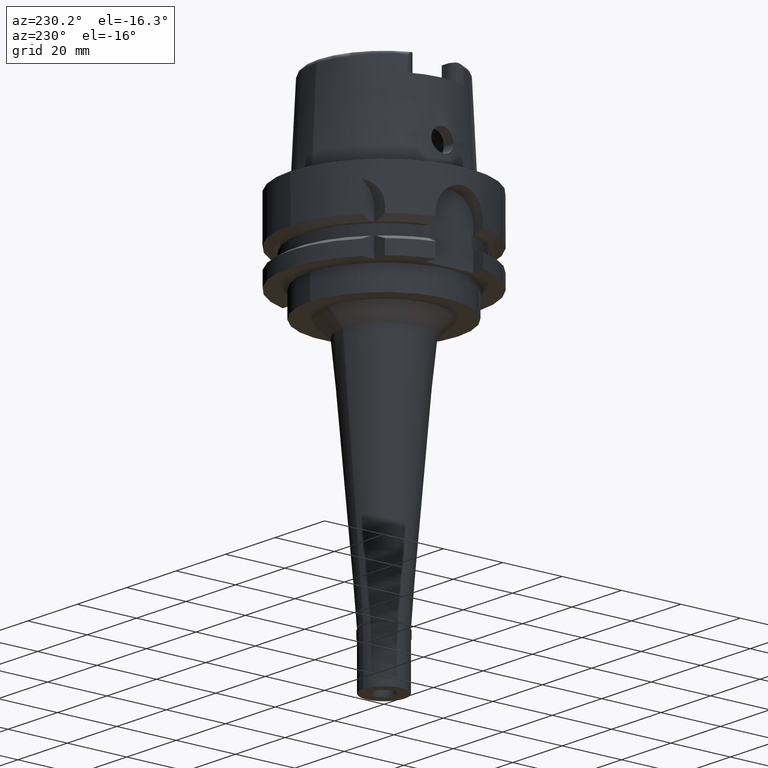
[diagram: clean part render]
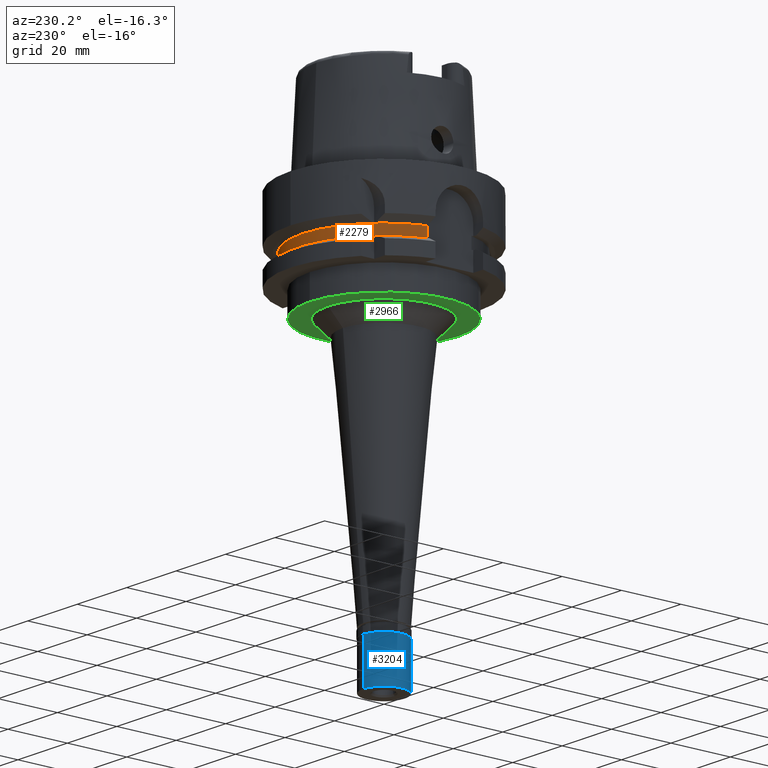
[diagram: same view with three faces highlighted in distinct colors, each labeled with its STEP entity id]
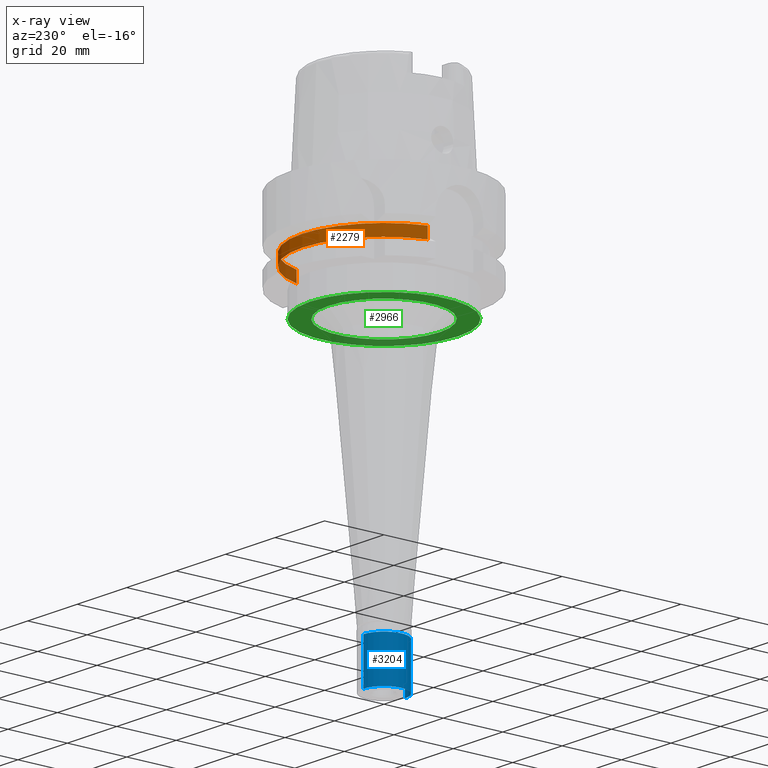
[diagram: x-ray of the same camera — body ghosted, the three highlighted faces saturated]
A machine part, auxiliary view with three faces highlighted in distinct colors.
The next image is the same camera in x-ray (body ghosted, the three faces saturated) — at least one of them is partly hidden behind the body in this view.
Their STEP definitions:

[orange] entity #2279 — the highlighted cylindrical surface (partial cylindrical patch) has radius 27.5 mm, axis along (0, 0, -1).
#16 = DIRECTION ( 'NONE',  ( 0.0000000000000000000, 0.0000000000000000000, 1.000000000000000000 ) ) ;
#53 = DIRECTION ( 'NONE',  ( 0.0000000000000000000, -1.000000000000000000, 0.0000000000000000000 ) ) ;
#132 = CARTESIAN_POINT ( 'NONE',  ( 0.0000000000000000000, 0.0000000000000000000, -19.87500000000000000 ) ) ;
#331 = CARTESIAN_POINT ( 'NONE',  ( 26.50000000000000000, 7.348469228349999938, -16.12500000000000000 ) ) ;
#657 = EDGE_CURVE ( 'NONE', #4257, #930, #5206, .T. ) ;
#807 = CARTESIAN_POINT ( 'NONE',  ( 0.0000000000000000000, 0.0000000000000000000, -16.12500000000000000 ) ) ;
#901 = CIRCLE ( 'NONE', #2631, 27.50000000000000000 ) ;
#916 = ORIENTED_EDGE ( 'NONE', *, *, #1381, .F. ) ;
#930 = VERTEX_POINT ( 'NONE', #2783 ) ;
#1128 = ORIENTED_EDGE ( 'NONE', *, *, #4797, .F. ) ;
#1187 = ORIENTED_EDGE ( 'NONE', *, *, #4871, .T. ) ;
#1336 = VECTOR ( 'NONE', #5311, 1000.000000000000000 ) ;
#1352 = LINE ( 'NONE', #3005, #4454 ) ;
#1381 = EDGE_CURVE ( 'NONE', #3717, #930, #1352, .T. ) ;
#1632 = DIRECTION ( 'NONE',  ( 0.0000000000000000000, 1.000000000000000000, 0.0000000000000000000 ) ) ;
#1723 = VERTEX_POINT ( 'NONE', #331 ) ;
#1802 = DIRECTION ( 'NONE',  ( 0.9636363636363595164, 0.2672170628490889155, 0.0000000000000000000 ) ) ;
#2132 = FACE_OUTER_BOUND ( 'NONE', #4429, .T. ) ;
#2279 = ADVANCED_FACE ( 'NONE', ( #2132 ), #2490, .T. ) ;
#2441 = CARTESIAN_POINT ( 'NONE',  ( 26.50000000000000000, 7.348469228349999938, -19.87500000000000000 ) ) ;
#2490 = CYLINDRICAL_SURFACE ( 'NONE', #2993, 27.50000000000000000 ) ;
#2538 = DIRECTION ( 'NONE',  ( 0.0000000000000000000, 0.0000000000000000000, -1.000000000000000000 ) ) ;
#2631 = AXIS2_PLACEMENT_3D ( 'NONE', #807, #4888, #1632 ) ;
#2783 = CARTESIAN_POINT ( 'NONE',  ( -26.50000000000000000, 7.348469228349999938, -19.87500000000000000 ) ) ;
#2993 = AXIS2_PLACEMENT_3D ( 'NONE', #4135, #2538, #53 ) ;
#3005 = CARTESIAN_POINT ( 'NONE',  ( -26.50000000000000000, 7.348469228349999938, -16.12500000000000000 ) ) ;
#3717 = VERTEX_POINT ( 'NONE', #4309 ) ;
#4135 = CARTESIAN_POINT ( 'NONE',  ( 0.0000000000000000000, 0.0000000000000000000, 40.14999999999999858 ) ) ;
#4136 = AXIS2_PLACEMENT_3D ( 'NONE', #132, #16, #1802 ) ;
#4257 = VERTEX_POINT ( 'NONE', #4712 ) ;
#4309 = CARTESIAN_POINT ( 'NONE',  ( -26.50000000000000000, 7.348469228349999938, -16.12500000000000000 ) ) ;
#4429 = EDGE_LOOP ( 'NONE', ( #916, #1187, #1128, #5146 ) ) ;
#4454 = VECTOR ( 'NONE', #4654, 1000.000000000000000 ) ;
#4654 = DIRECTION ( 'NONE',  ( 0.0000000000000000000, 0.0000000000000000000, -1.000000000000000000 ) ) ;
#4712 = CARTESIAN_POINT ( 'NONE',  ( 26.50000000000000000, 7.348469228349999938, -19.87500000000000000 ) ) ;
#4797 = EDGE_CURVE ( 'NONE', #4257, #1723, #5204, .T. ) ;
#4871 = EDGE_CURVE ( 'NONE', #3717, #1723, #901, .T. ) ;
#4888 = DIRECTION ( 'NONE',  ( 0.0000000000000000000, 0.0000000000000000000, -1.000000000000000000 ) ) ;
#5146 = ORIENTED_EDGE ( 'NONE', *, *, #657, .T. ) ;
#5204 = LINE ( 'NONE', #2441, #1336 ) ;
#5206 = CIRCLE ( 'NONE', #4136, 27.50000000000001066 ) ;
#5311 = DIRECTION ( 'NONE',  ( 0.0000000000000000000, 0.0000000000000000000, 1.000000000000000000 ) ) ;

[blue] entity #3204 — the highlighted cylindrical surface (edge-blend (fillet) strip) has radius 7 mm, axis along (0, 0, 1).
#377 = VECTOR ( 'NONE', #2163, 1000.000000000000000 ) ;
#475 = CIRCLE ( 'NONE', #2391, 7.000000000000000000 ) ;
#710 = CYLINDRICAL_SURFACE ( 'NONE', #1618, 7.000000000000000000 ) ;
#806 = CARTESIAN_POINT ( 'NONE',  ( 0.0000000000000000000, -7.000000000000000000, -2.299999999999999822 ) ) ;
#904 = CIRCLE ( 'NONE', #1602, 7.000000000000000000 ) ;
#1075 = VERTEX_POINT ( 'NONE', #4077 ) ;
#1125 = ORIENTED_EDGE ( 'NONE', *, *, #2647, .T. ) ;
#1229 = EDGE_CURVE ( 'NONE', #5237, #4478, #2488, .T. ) ;
#1303 = ORIENTED_EDGE ( 'NONE', *, *, #1229, .T. ) ;
#1547 = VECTOR ( 'NONE', #3763, 1000.000000000000000 ) ;
#1602 = AXIS2_PLACEMENT_3D ( 'NONE', #2805, #3156, #5271 ) ;
#1618 = AXIS2_PLACEMENT_3D ( 'NONE', #4453, #5373, #2372 ) ;
#1787 = DIRECTION ( 'NONE',  ( 0.0000000000000000000, 0.0000000000000000000, -1.000000000000000000 ) ) ;
#1839 = DIRECTION ( 'NONE',  ( 0.0000000000000000000, -1.000000000000000000, 0.0000000000000000000 ) ) ;
#1893 = CARTESIAN_POINT ( 'NONE',  ( 0.0000000000000000000, 0.0000000000000000000, -2.299999999999999822 ) ) ;
#2163 = DIRECTION ( 'NONE',  ( 0.0000000000000000000, 0.0000000000000000000, -1.000000000000000000 ) ) ;
#2372 = DIRECTION ( 'NONE',  ( 0.0000000000000000000, 1.000000000000000000, 0.0000000000000000000 ) ) ;
#2391 = AXIS2_PLACEMENT_3D ( 'NONE', #1893, #1787, #1839 ) ;
#2488 = LINE ( 'NONE', #2568, #377 ) ;
#2568 = CARTESIAN_POINT ( 'NONE',  ( 0.0000000000000000000, 7.000000000000000000, -2.299999999999999822 ) ) ;
#2647 = EDGE_CURVE ( 'NONE', #1075, #5237, #475, .T. ) ;
#2805 = CARTESIAN_POINT ( 'NONE',  ( 0.0000000000000000000, 0.0000000000000000000, -17.00000000000000000 ) ) ;
#3156 = DIRECTION ( 'NONE',  ( 0.0000000000000000000, 0.0000000000000000000, 1.000000000000000000 ) ) ;
#3204 = ADVANCED_FACE ( 'NONE', ( #3233 ), #710, .T. ) ;
#3233 = FACE_OUTER_BOUND ( 'NONE', #3349, .T. ) ;
#3237 = VERTEX_POINT ( 'NONE', #4849 ) ;
#3349 = EDGE_LOOP ( 'NONE', ( #4792, #5177, #1125, #1303 ) ) ;
#3763 = DIRECTION ( 'NONE',  ( 0.0000000000000000000, 0.0000000000000000000, -1.000000000000000000 ) ) ;
#4077 = CARTESIAN_POINT ( 'NONE',  ( 0.0000000000000000000, -7.000000000000000000, -2.299999999999999822 ) ) ;
#4085 = EDGE_CURVE ( 'NONE', #1075, #3237, #4628, .T. ) ;
#4431 = CARTESIAN_POINT ( 'NONE',  ( 0.0000000000000000000, 7.000000000000000000, -2.299999999999999822 ) ) ;
#4453 = CARTESIAN_POINT ( 'NONE',  ( 0.0000000000000000000, 0.0000000000000000000, -17.85000000000000142 ) ) ;
#4478 = VERTEX_POINT ( 'NONE', #4677 ) ;
#4628 = LINE ( 'NONE', #806, #1547 ) ;
#4677 = CARTESIAN_POINT ( 'NONE',  ( 0.0000000000000000000, 7.000000000000000000, -17.00000000000000000 ) ) ;
#4792 = ORIENTED_EDGE ( 'NONE', *, *, #5223, .T. ) ;
#4849 = CARTESIAN_POINT ( 'NONE',  ( 0.0000000000000000000, -7.000000000000000000, -17.00000000000000000 ) ) ;
#5177 = ORIENTED_EDGE ( 'NONE', *, *, #4085, .F. ) ;
#5223 = EDGE_CURVE ( 'NONE', #4478, #3237, #904, .T. ) ;
#5237 = VERTEX_POINT ( 'NONE', #4431 ) ;
#5271 = DIRECTION ( 'NONE',  ( 0.0000000000000000000, 1.000000000000000000, 0.0000000000000000000 ) ) ;
#5373 = DIRECTION ( 'NONE',  ( 0.0000000000000000000, 0.0000000000000000000, 1.000000000000000000 ) ) ;

[green] entity #2966 — the highlighted planar face has unit normal (0, 0, -1).
#30 = AXIS2_PLACEMENT_3D ( 'NONE', #1236, #1130, #4506 ) ;
#200 = AXIS2_PLACEMENT_3D ( 'NONE', #738, #3573, #5298 ) ;
#237 = CARTESIAN_POINT ( 'NONE',  ( 0.0000000000000000000, 25.00000000000000000, -34.00000000000000000 ) ) ;
#738 = CARTESIAN_POINT ( 'NONE',  ( 0.0000000000000000000, 0.0000000000000000000, -34.00000000000000000 ) ) ;
#1088 = CIRCLE ( 'NONE', #2904, 18.85036235408000138 ) ;
#1130 = DIRECTION ( 'NONE',  ( 0.0000000000000000000, 0.0000000000000000000, 1.000000000000000000 ) ) ;
#1186 = CIRCLE ( 'NONE', #30, 25.00000000000000000 ) ;
#1236 = CARTESIAN_POINT ( 'NONE',  ( 0.0000000000000000000, 0.0000000000000000000, -34.00000000000000000 ) ) ;
#1323 = ORIENTED_EDGE ( 'NONE', *, *, #5175, .F. ) ;
#1375 = VERTEX_POINT ( 'NONE', #3944 ) ;
#1483 = FACE_BOUND ( 'NONE', #3904, .T. ) ;
#1676 = EDGE_CURVE ( 'NONE', #5254, #1375, #1088, .T. ) ;
#1937 = CARTESIAN_POINT ( 'NONE',  ( 0.0000000000000000000, 0.0000000000000000000, -34.00000000000000000 ) ) ;
#1993 = DIRECTION ( 'NONE',  ( 0.0000000000000000000, 0.0000000000000000000, -1.000000000000000000 ) ) ;
#2561 = AXIS2_PLACEMENT_3D ( 'NONE', #5153, #2756, #4291 ) ;
#2686 = ORIENTED_EDGE ( 'NONE', *, *, #3140, .F. ) ;
#2756 = DIRECTION ( 'NONE',  ( 0.0000000000000000000, 0.0000000000000000000, -1.000000000000000000 ) ) ;
#2807 = CIRCLE ( 'NONE', #3501, 25.00000000000000000 ) ;
#2904 = AXIS2_PLACEMENT_3D ( 'NONE', #1937, #1993, #3216 ) ;
#2966 = ADVANCED_FACE ( 'NONE', ( #5126, #1483 ), #3054, .T. ) ;
#3054 = PLANE ( 'NONE',  #2561 ) ;
#3140 = EDGE_CURVE ( 'NONE', #3700, #4514, #1186, .T. ) ;
#3216 = DIRECTION ( 'NONE',  ( 0.0000000000000000000, 1.000000000000000000, 0.0000000000000000000 ) ) ;
#3284 = ORIENTED_EDGE ( 'NONE', *, *, #5210, .F. ) ;
#3289 = CARTESIAN_POINT ( 'NONE',  ( 0.0000000000000000000, 18.85036235408000138, -34.00000000000000000 ) ) ;
#3501 = AXIS2_PLACEMENT_3D ( 'NONE', #3626, #4850, #3648 ) ;
#3573 = DIRECTION ( 'NONE',  ( 0.0000000000000000000, 0.0000000000000000000, -1.000000000000000000 ) ) ;
#3626 = CARTESIAN_POINT ( 'NONE',  ( 0.0000000000000000000, 0.0000000000000000000, -34.00000000000000000 ) ) ;
#3648 = DIRECTION ( 'NONE',  ( 0.0000000000000000000, -1.000000000000000000, 0.0000000000000000000 ) ) ;
#3697 = ORIENTED_EDGE ( 'NONE', *, *, #1676, .F. ) ;
#3700 = VERTEX_POINT ( 'NONE', #237 ) ;
#3822 = EDGE_LOOP ( 'NONE', ( #2686, #1323 ) ) ;
#3904 = EDGE_LOOP ( 'NONE', ( #3697, #3284 ) ) ;
#3944 = CARTESIAN_POINT ( 'NONE',  ( 0.0000000000000000000, -18.85036235408000138, -34.00000000000000000 ) ) ;
#4291 = DIRECTION ( 'NONE',  ( 0.0000000000000000000, -1.000000000000000000, 0.0000000000000000000 ) ) ;
#4506 = DIRECTION ( 'NONE',  ( 0.0000000000000000000, 1.000000000000000000, 0.0000000000000000000 ) ) ;
#4514 = VERTEX_POINT ( 'NONE', #4704 ) ;
#4704 = CARTESIAN_POINT ( 'NONE',  ( 0.0000000000000000000, -25.00000000000000000, -34.00000000000000000 ) ) ;
#4850 = DIRECTION ( 'NONE',  ( 0.0000000000000000000, 0.0000000000000000000, 1.000000000000000000 ) ) ;
#4894 = CIRCLE ( 'NONE', #200, 18.85036235408000138 ) ;
#5126 = FACE_OUTER_BOUND ( 'NONE', #3822, .T. ) ;
#5153 = CARTESIAN_POINT ( 'NONE',  ( 0.0000000000000000000, 0.0000000000000000000, -34.00000000000000000 ) ) ;
#5175 = EDGE_CURVE ( 'NONE', #4514, #3700, #2807, .T. ) ;
#5210 = EDGE_CURVE ( 'NONE', #1375, #5254, #4894, .T. ) ;
#5254 = VERTEX_POINT ( 'NONE', #3289 ) ;
#5298 = DIRECTION ( 'NONE',  ( 0.0000000000000000000, -1.000000000000000000, 0.0000000000000000000 ) ) ;